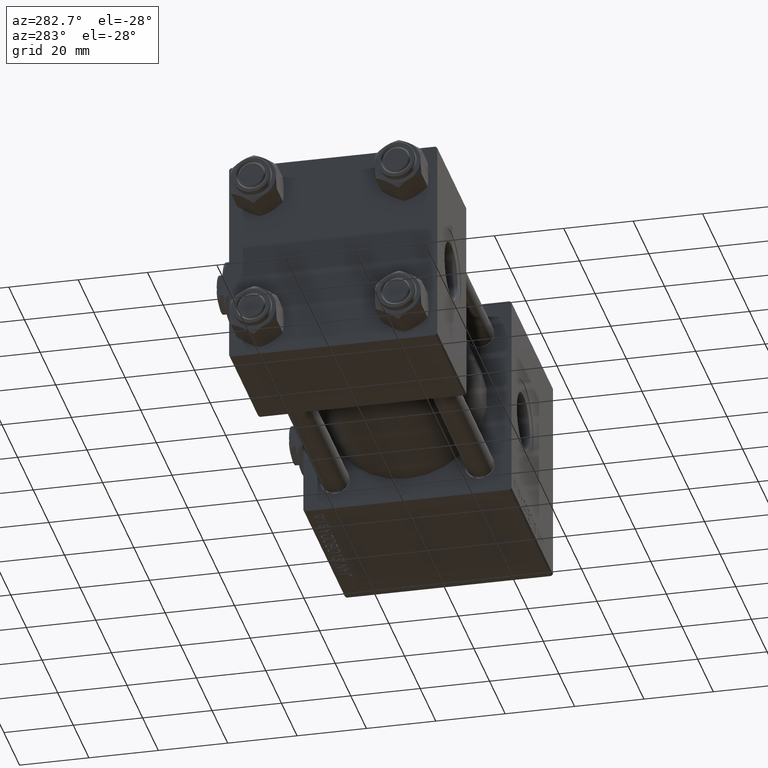
[diagram: clean part render]
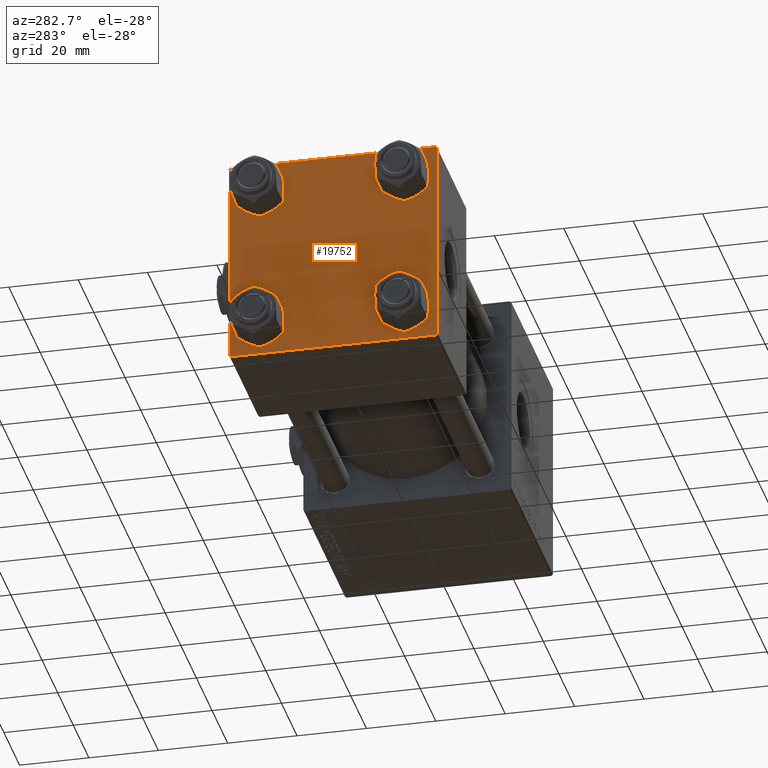
[diagram: same view with one face highlighted and labeled with its STEP entity id]
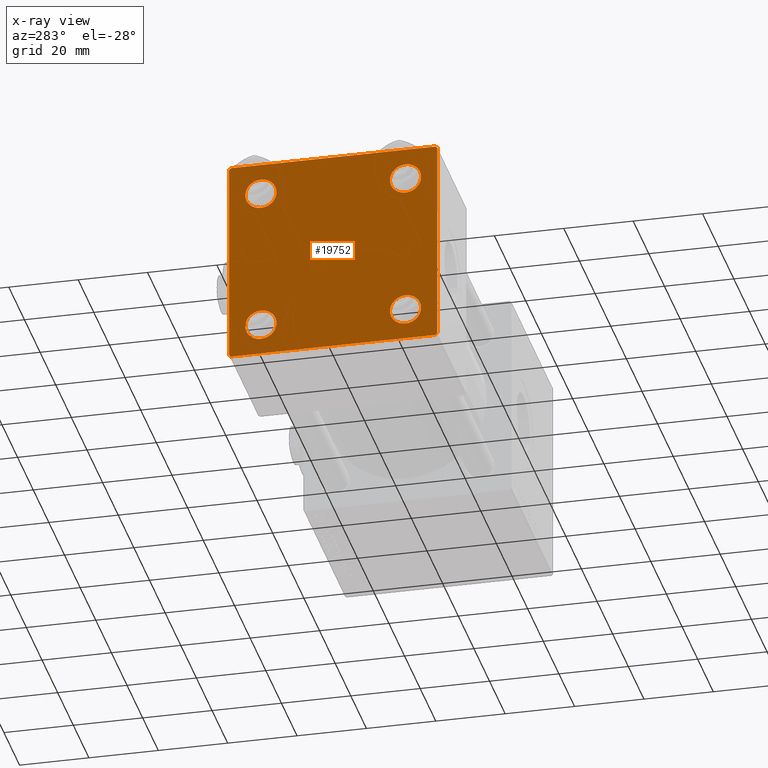
[diagram: x-ray of the same camera — body ghosted, the highlighted face saturated]
A machine part, auxiliary view. The second image highlights one B-rep face of the part: STEP entity #19752.
The next image is the same camera in x-ray: the body ghosted, the highlighted face saturated — about 0% of this face is hidden behind the body in this view.
In plain terms, the highlighted planar face has unit normal (-1, 0, 0).
Its self-contained STEP definition (entity closure, byte-faithful):
#583 = DIRECTION ( 'NONE',  ( 1.000000000000000000, -0.000000000000000000, 0.000000000000000000 ) ) ;
#657 = DIRECTION ( 'NONE',  ( 1.000000000000000000, -0.000000000000000000, 0.000000000000000000 ) ) ;
#1055 = EDGE_CURVE ( 'NONE', #16178, #8220, #9415, .T. ) ;
#1102 = CARTESIAN_POINT ( 'NONE',  ( 0.000000000000000000, -30.00000000000000000, 29.99999999999999289 ) ) ;
#1226 = EDGE_CURVE ( 'NONE', #33861, #38725, #3279, .T. ) ;
#1442 = AXIS2_PLACEMENT_3D ( 'NONE', #8594, #657, #49025 ) ;
#1463 = FACE_OUTER_BOUND ( 'NONE', #1680, .T. ) ;
#1680 = EDGE_LOOP ( 'NONE', ( #36283, #41745, #49450, #3539, #11938, #50238, #13966, #50182 ) ) ;
#1721 = CARTESIAN_POINT ( 'NONE',  ( 0.000000000000000000, 20.84999999999999787, -25.35000000000001918 ) ) ;
#2088 = LINE ( 'NONE', #18225, #39716 ) ;
#2106 = LINE ( 'NONE', #21447, #17147 ) ;
#2402 = CARTESIAN_POINT ( 'NONE',  ( 0.000000000000000000, -20.84999999999999076, -20.85000000000000497 ) ) ;
#2419 = ORIENTED_EDGE ( 'NONE', *, *, #19520, .T. ) ;
#2525 = EDGE_LOOP ( 'NONE', ( #2419, #9780 ) ) ;
#2527 = CIRCLE ( 'NONE', #23695, 4.500000000000017764 ) ;
#2817 = DIRECTION ( 'NONE',  ( 0.000000000000000000, 0.000000000000000000, 1.000000000000000000 ) ) ;
#3279 = CIRCLE ( 'NONE', #10041, 4.500000000000017764 ) ;
#3393 = ORIENTED_EDGE ( 'NONE', *, *, #21128, .T. ) ;
#3539 = ORIENTED_EDGE ( 'NONE', *, *, #28131, .T. ) ;
#4655 = FACE_BOUND ( 'NONE', #2525, .T. ) ;
#4958 = EDGE_LOOP ( 'NONE', ( #47194, #7354 ) ) ;
#5177 = DIRECTION ( 'NONE',  ( -0.000000000000000000, -0.7071067811865574537, -0.7071067811865376918 ) ) ;
#5291 = ORIENTED_EDGE ( 'NONE', *, *, #1226, .T. ) ;
#5594 = DIRECTION ( 'NONE',  ( 1.000000000000000000, -0.000000000000000000, 0.000000000000000000 ) ) ;
#5886 = AXIS2_PLACEMENT_3D ( 'NONE', #36305, #583, #44221 ) ;
#6095 = EDGE_CURVE ( 'NONE', #43668, #14534, #48325, .T. ) ;
#6794 = CARTESIAN_POINT ( 'NONE',  ( 0.000000000000000000, 20.84999999999999787, -20.85000000000000142 ) ) ;
#6935 = VECTOR ( 'NONE', #26637, 1000.000000000000114 ) ;
#7354 = ORIENTED_EDGE ( 'NONE', *, *, #21887, .T. ) ;
#7464 = CARTESIAN_POINT ( 'NONE',  ( 0.000000000000000000, 20.84999999999999787, 25.35000000000001918 ) ) ;
#8220 = VERTEX_POINT ( 'NONE', #32955 ) ;
#8461 = DIRECTION ( 'NONE',  ( 0.000000000000000000, 0.000000000000000000, 1.000000000000000000 ) ) ;
#8580 = VERTEX_POINT ( 'NONE', #49150 ) ;
#8594 = CARTESIAN_POINT ( 'NONE',  ( 0.000000000000000000, 20.84999999999999787, 20.85000000000000142 ) ) ;
#8893 = DIRECTION ( 'NONE',  ( -1.000000000000000000, 0.000000000000000000, -0.000000000000000000 ) ) ;
#9331 = VECTOR ( 'NONE', #33631, 1000.000000000000000 ) ;
#9415 = LINE ( 'NONE', #45367, #35373 ) ;
#9573 = DIRECTION ( 'NONE',  ( 0.000000000000000000, 0.000000000000000000, 1.000000000000000000 ) ) ;
#9780 = ORIENTED_EDGE ( 'NONE', *, *, #27742, .T. ) ;
#10041 = AXIS2_PLACEMENT_3D ( 'NONE', #43487, #19445, #44025 ) ;
#10506 = CARTESIAN_POINT ( 'NONE',  ( -0.000000000000000000, -29.74999999999999645, 29.74999999999999645 ) ) ;
#10566 = DIRECTION ( 'NONE',  ( 0.000000000000000000, 0.000000000000000000, -1.000000000000000000 ) ) ;
#11226 = DIRECTION ( 'NONE',  ( 1.000000000000000000, -0.000000000000000000, 0.000000000000000000 ) ) ;
#11571 = EDGE_CURVE ( 'NONE', #38725, #33861, #17496, .T. ) ;
#11938 = ORIENTED_EDGE ( 'NONE', *, *, #51888, .F. ) ;
#13966 = ORIENTED_EDGE ( 'NONE', *, *, #40827, .F. ) ;
#14196 = AXIS2_PLACEMENT_3D ( 'NONE', #48630, #28566, #8461 ) ;
#14534 = VERTEX_POINT ( 'NONE', #27039 ) ;
#14567 = CARTESIAN_POINT ( 'NONE',  ( 0.000000000000000000, 29.99999999999999289, 30.00000000000000000 ) ) ;
#15463 = CIRCLE ( 'NONE', #23915, 4.500000000000017764 ) ;
#15844 = CARTESIAN_POINT ( 'NONE',  ( 0.000000000000000000, -20.84999999999999076, -16.34999999999998721 ) ) ;
#16178 = VERTEX_POINT ( 'NONE', #22943 ) ;
#16573 = DIRECTION ( 'NONE',  ( -0.000000000000000000, 0.000000000000000000, 1.000000000000000000 ) ) ;
#16826 = AXIS2_PLACEMENT_3D ( 'NONE', #37973, #8893, #16573 ) ;
#17019 = EDGE_CURVE ( 'NONE', #33792, #29033, #18424, .T. ) ;
#17147 = VECTOR ( 'NONE', #33874, 1000.000000000000114 ) ;
#17496 = CIRCLE ( 'NONE', #1442, 4.500000000000017764 ) ;
#18026 = VERTEX_POINT ( 'NONE', #32576 ) ;
#18100 = CARTESIAN_POINT ( 'NONE',  ( 0.000000000000000000, -29.49999999999998579, 29.99999999999999289 ) ) ;
#18225 = CARTESIAN_POINT ( 'NONE',  ( 0.000000000000000000, 29.99999999999999289, 30.00000000000000000 ) ) ;
#18424 = CIRCLE ( 'NONE', #14196, 4.500000000000017764 ) ;
#19445 = DIRECTION ( 'NONE',  ( 1.000000000000000000, -0.000000000000000000, 0.000000000000000000 ) ) ;
#19520 = EDGE_CURVE ( 'NONE', #18026, #27566, #48044, .T. ) ;
#19752 = ADVANCED_FACE ( 'NONE', ( #25555, #37713, #4655, #49073, #1463 ), #21836, .T. ) ;
#20576 = DIRECTION ( 'NONE',  ( 0.000000000000000000, 0.7071067811865474617, -0.7071067811865474617 ) ) ;
#21025 = VERTEX_POINT ( 'NONE', #36326 ) ;
#21128 = EDGE_CURVE ( 'NONE', #29033, #33792, #32980, .T. ) ;
#21447 = CARTESIAN_POINT ( 'NONE',  ( 0.000000000000000000, -29.75000000000001066, -29.75000000000001066 ) ) ;
#21836 = PLANE ( 'NONE',  #16826 ) ;
#21887 = EDGE_CURVE ( 'NONE', #8580, #21025, #2527, .T. ) ;
#22215 = CARTESIAN_POINT ( 'NONE',  ( 0.000000000000000000, 29.99999999999999289, -30.00000000000000000 ) ) ;
#22938 = DIRECTION ( 'NONE',  ( 1.000000000000000000, -0.000000000000000000, 0.000000000000000000 ) ) ;
#22943 = CARTESIAN_POINT ( 'NONE',  ( 0.000000000000000000, 29.99999999999999289, -29.50000000000000000 ) ) ;
#23673 = DIRECTION ( 'NONE',  ( 1.000000000000000000, -0.000000000000000000, 0.000000000000000000 ) ) ;
#23695 = AXIS2_PLACEMENT_3D ( 'NONE', #35286, #11226, #27095 ) ;
#23915 = AXIS2_PLACEMENT_3D ( 'NONE', #39261, #23673, #44027 ) ;
#25158 = VECTOR ( 'NONE', #34925, 1000.000000000000000 ) ;
#25287 = AXIS2_PLACEMENT_3D ( 'NONE', #6794, #22938, #2817 ) ;
#25555 = FACE_BOUND ( 'NONE', #4958, .T. ) ;
#26322 = EDGE_CURVE ( 'NONE', #47691, #32856, #34310, .T. ) ;
#26616 = ORIENTED_EDGE ( 'NONE', *, *, #11571, .T. ) ;
#26637 = DIRECTION ( 'NONE',  ( -0.000000000000000000, 0.7071067811865474617, 0.7071067811865474617 ) ) ;
#26836 = CARTESIAN_POINT ( 'NONE',  ( 0.000000000000000000, 20.84999999999999787, 16.34999999999998366 ) ) ;
#27039 = CARTESIAN_POINT ( 'NONE',  ( 0.000000000000000000, 29.99999999999999289, 29.50000000000000000 ) ) ;
#27095 = DIRECTION ( 'NONE',  ( 0.000000000000000000, 0.000000000000000000, 1.000000000000000000 ) ) ;
#27566 = VERTEX_POINT ( 'NONE', #1721 ) ;
#27742 = EDGE_CURVE ( 'NONE', #27566, #18026, #15463, .T. ) ;
#28109 = EDGE_CURVE ( 'NONE', #8220, #33950, #41791, .T. ) ;
#28131 = EDGE_CURVE ( 'NONE', #33950, #51465, #2106, .T. ) ;
#28566 = DIRECTION ( 'NONE',  ( 1.000000000000000000, -0.000000000000000000, 0.000000000000000000 ) ) ;
#29033 = VERTEX_POINT ( 'NONE', #33172 ) ;
#30125 = CARTESIAN_POINT ( 'NONE',  ( 0.000000000000000000, -30.00000000000000000, 29.49999999999999289 ) ) ;
#32132 = CARTESIAN_POINT ( 'NONE',  ( 0.000000000000000000, -29.50000000000000000, -30.00000000000000711 ) ) ;
#32577 = VECTOR ( 'NONE', #20576, 1000.000000000000114 ) ;
#32576 = CARTESIAN_POINT ( 'NONE',  ( 0.000000000000000000, 20.84999999999999787, -16.34999999999998366 ) ) ;
#32856 = VERTEX_POINT ( 'NONE', #18100 ) ;
#32955 = CARTESIAN_POINT ( 'NONE',  ( 0.000000000000000000, 29.49999999999997868, -30.00000000000000000 ) ) ;
#32980 = CIRCLE ( 'NONE', #37170, 4.500000000000017764 ) ;
#33065 = EDGE_LOOP ( 'NONE', ( #26616, #5291 ) ) ;
#33172 = CARTESIAN_POINT ( 'NONE',  ( 0.000000000000000000, -20.84999999999999076, -25.35000000000002274 ) ) ;
#33631 = DIRECTION ( 'NONE',  ( 0.000000000000000000, 0.000000000000000000, -1.000000000000000000 ) ) ;
#33792 = VERTEX_POINT ( 'NONE', #15844 ) ;
#33861 = VERTEX_POINT ( 'NONE', #26836 ) ;
#33874 = DIRECTION ( 'NONE',  ( 0.000000000000000000, -0.7071067811865474617, 0.7071067811865474617 ) ) ;
#33950 = VERTEX_POINT ( 'NONE', #32132 ) ;
#34147 = LINE ( 'NONE', #1102, #9331 ) ;
#34310 = LINE ( 'NONE', #10506, #6935 ) ;
#34925 = DIRECTION ( 'NONE',  ( 0.000000000000000000, -1.000000000000000000, -1.156482317317871725E-16 ) ) ;
#35170 = CARTESIAN_POINT ( 'NONE',  ( 0.000000000000000000, 29.49999999999999289, 30.00000000000000000 ) ) ;
#35286 = CARTESIAN_POINT ( 'NONE',  ( 0.000000000000000000, -20.84999999999999076, 20.85000000000000497 ) ) ;
#35373 = VECTOR ( 'NONE', #5177, 999.9999999999998863 ) ;
#36283 = ORIENTED_EDGE ( 'NONE', *, *, #50562, .T. ) ;
#36305 = CARTESIAN_POINT ( 'NONE',  ( 0.000000000000000000, -20.84999999999999076, 20.85000000000000497 ) ) ;
#36326 = CARTESIAN_POINT ( 'NONE',  ( 0.000000000000000000, -20.84999999999999076, 25.35000000000002274 ) ) ;
#36341 = CIRCLE ( 'NONE', #5886, 4.500000000000017764 ) ;
#37170 = AXIS2_PLACEMENT_3D ( 'NONE', #2402, #5594, #9573 ) ;
#37713 = FACE_BOUND ( 'NONE', #52042, .T. ) ;
#37973 = CARTESIAN_POINT ( 'NONE',  ( 0.000000000000000000, 0.000000000000000000, 0.000000000000000000 ) ) ;
#38725 = VERTEX_POINT ( 'NONE', #7464 ) ;
#39261 = CARTESIAN_POINT ( 'NONE',  ( 0.000000000000000000, 20.84999999999999787, -20.85000000000000142 ) ) ;
#39278 = CARTESIAN_POINT ( 'NONE',  ( 0.000000000000000000, -30.00000000000000000, -29.50000000000001776 ) ) ;
#39716 = VECTOR ( 'NONE', #10566, 1000.000000000000000 ) ;
#40148 = CARTESIAN_POINT ( 'NONE',  ( 0.000000000000000000, 29.74999999999999645, 29.74999999999999645 ) ) ;
#40827 = EDGE_CURVE ( 'NONE', #43668, #32856, #50773, .T. ) ;
#41168 = ORIENTED_EDGE ( 'NONE', *, *, #17019, .T. ) ;
#41745 = ORIENTED_EDGE ( 'NONE', *, *, #1055, .T. ) ;
#41791 = LINE ( 'NONE', #22215, #44176 ) ;
#43487 = CARTESIAN_POINT ( 'NONE',  ( 0.000000000000000000, 20.84999999999999787, 20.85000000000000142 ) ) ;
#43668 = VERTEX_POINT ( 'NONE', #35170 ) ;
#44025 = DIRECTION ( 'NONE',  ( 0.000000000000000000, 0.000000000000000000, 1.000000000000000000 ) ) ;
#44027 = DIRECTION ( 'NONE',  ( 0.000000000000000000, 0.000000000000000000, 1.000000000000000000 ) ) ;
#44176 = VECTOR ( 'NONE', #49965, 1000.000000000000000 ) ;
#44221 = DIRECTION ( 'NONE',  ( 0.000000000000000000, 0.000000000000000000, 1.000000000000000000 ) ) ;
#45367 = CARTESIAN_POINT ( 'NONE',  ( 0.000000000000000000, 29.74999999999957723, -29.75000000000040501 ) ) ;
#46510 = EDGE_CURVE ( 'NONE', #21025, #8580, #36341, .T. ) ;
#47194 = ORIENTED_EDGE ( 'NONE', *, *, #46510, .T. ) ;
#47691 = VERTEX_POINT ( 'NONE', #30125 ) ;
#48044 = CIRCLE ( 'NONE', #25287, 4.500000000000017764 ) ;
#48325 = LINE ( 'NONE', #40148, #32577 ) ;
#48630 = CARTESIAN_POINT ( 'NONE',  ( 0.000000000000000000, -20.84999999999999076, -20.85000000000000497 ) ) ;
#49025 = DIRECTION ( 'NONE',  ( 0.000000000000000000, 0.000000000000000000, 1.000000000000000000 ) ) ;
#49073 = FACE_BOUND ( 'NONE', #33065, .T. ) ;
#49150 = CARTESIAN_POINT ( 'NONE',  ( 0.000000000000000000, -20.84999999999999076, 16.34999999999998721 ) ) ;
#49450 = ORIENTED_EDGE ( 'NONE', *, *, #28109, .T. ) ;
#49965 = DIRECTION ( 'NONE',  ( 0.000000000000000000, -1.000000000000000000, -1.156482317317871725E-16 ) ) ;
#50182 = ORIENTED_EDGE ( 'NONE', *, *, #6095, .T. ) ;
#50238 = ORIENTED_EDGE ( 'NONE', *, *, #26322, .T. ) ;
#50562 = EDGE_CURVE ( 'NONE', #14534, #16178, #2088, .T. ) ;
#50773 = LINE ( 'NONE', #14567, #25158 ) ;
#51465 = VERTEX_POINT ( 'NONE', #39278 ) ;
#51888 = EDGE_CURVE ( 'NONE', #47691, #51465, #34147, .T. ) ;
#52042 = EDGE_LOOP ( 'NONE', ( #41168, #3393 ) ) ;